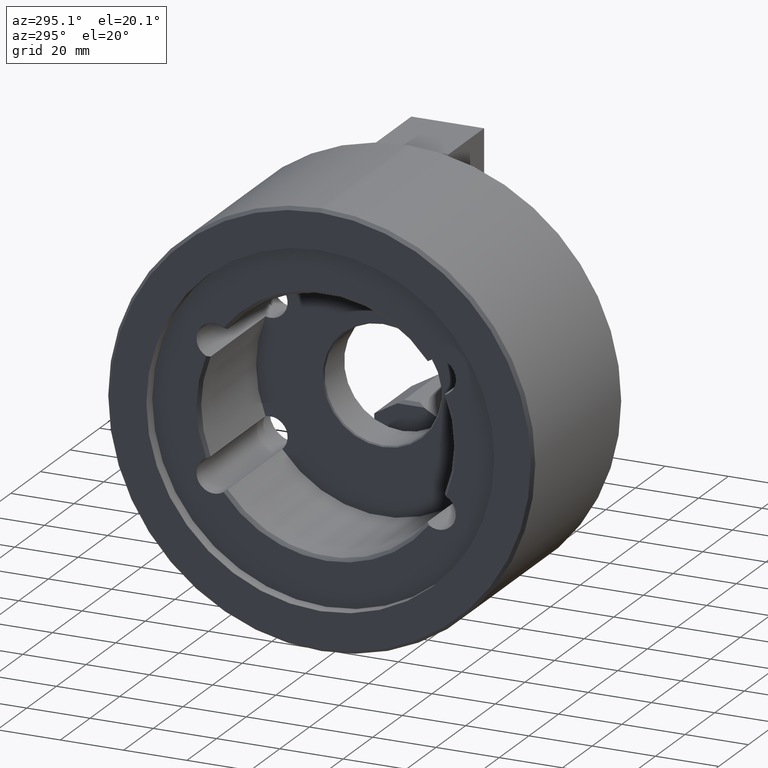
[diagram: clean part render]
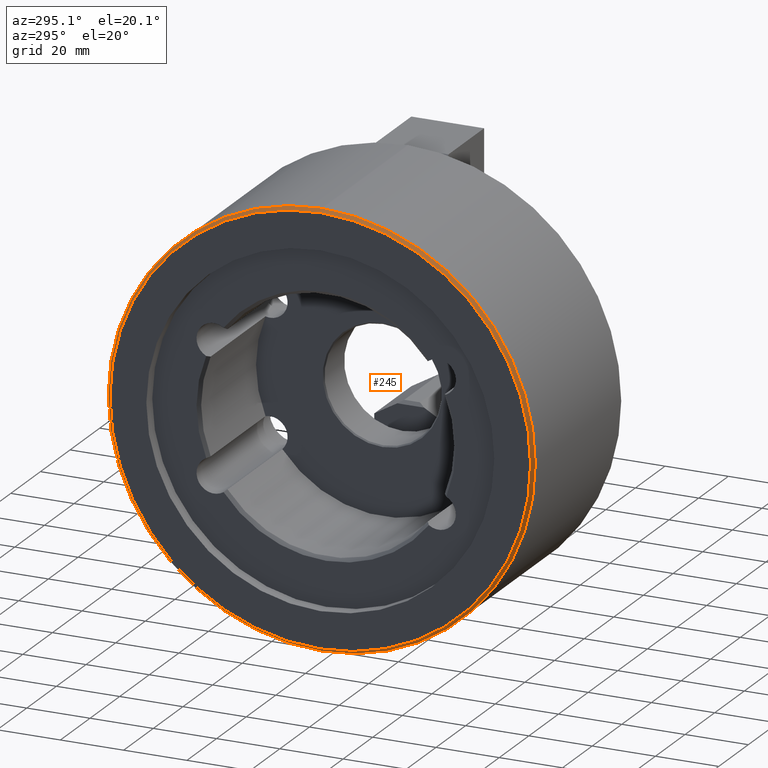
[diagram: same view with one face highlighted and labeled with its STEP entity id]
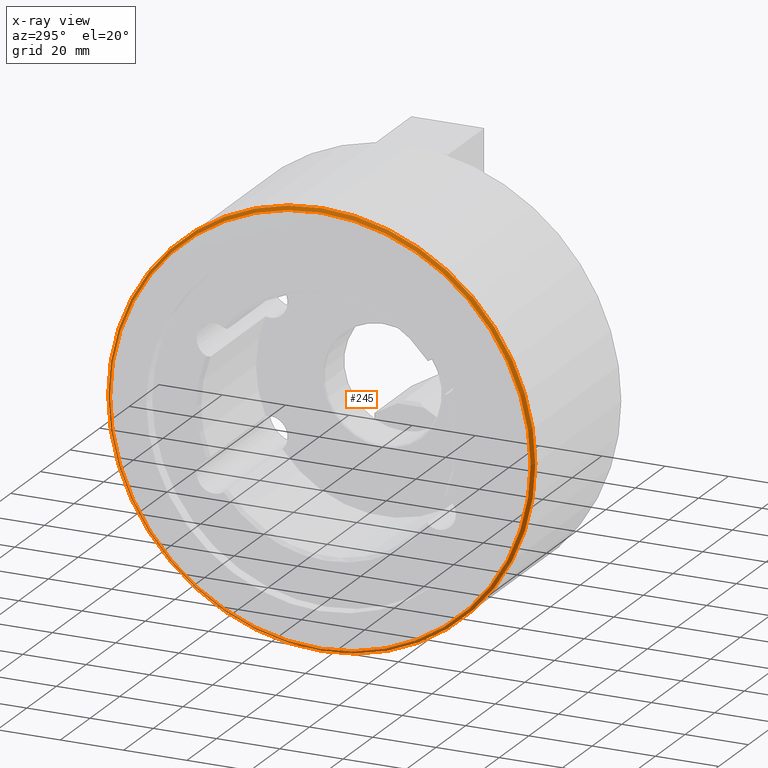
[diagram: x-ray of the same camera — body ghosted, the highlighted face saturated]
A machine part, auxiliary view. The second image highlights one B-rep face of the part: STEP entity #245.
The next image is the same camera in x-ray: the body ghosted, the highlighted face saturated — about 0% of this face is hidden behind the body in this view.
In plain terms, the highlighted conical surface has half-angle 45.042 deg.
Its self-contained STEP definition (entity closure, byte-faithful):
#245 = ADVANCED_FACE( '', ( #670, #671 ), #672, .T. );
#670 = FACE_OUTER_BOUND( '', #1345, .T. );
#671 = FACE_BOUND( '', #1346, .T. );
#672 = CONICAL_SURFACE( '', #1347, 66.5000000000000, 0.786125538495994 );
#1345 = EDGE_LOOP( '', ( #2032 ) );
#1346 = EDGE_LOOP( '', ( #2033 ) );
#1347 = AXIS2_PLACEMENT_3D( '', #2034, #2035, #2036 );
#2032 = ORIENTED_EDGE( '', *, *, #4010, .T. );
#2033 = ORIENTED_EDGE( '', *, *, #4011, .F. );
#2034 = CARTESIAN_POINT( '', ( -29.9985463069267, 0.000000000000000, -1.15549116199418E-030 ) );
#2035 = DIRECTION( '', ( 1.00000000000000, -0.000000000000000, 1.28379282215539E-032 ) );
#2036 = DIRECTION( '', ( 1.28379282215539E-032, 0.000000000000000, -1.00000000000000 ) );
#4010 = EDGE_CURVE( '', #4655, #4655, #4656, .T. );
#4011 = EDGE_CURVE( '', #4657, #4657, #4658, .T. );
#4655 = VERTEX_POINT( '', #5588 );
#4656 = CIRCLE( '', #5589, 67.5000000000000 );
#4657 = VERTEX_POINT( '', #5590 );
#4658 = CIRCLE( '', #5591, 66.5000000000000 );
#5588 = CARTESIAN_POINT( '', ( -29.0000000000000, 0.000000000000000, 67.5000000000000 ) );
#5589 = AXIS2_PLACEMENT_3D( '', #7684, #7685, #7686 );
#5590 = CARTESIAN_POINT( '', ( -29.9985463069267, 0.000000000000000, 66.5000000000000 ) );
#5591 = AXIS2_PLACEMENT_3D( '', #7687, #7688, #7689 );
#7684 = CARTESIAN_POINT( '', ( -29.0000000000000, 0.000000000000000, -1.14267189617996E-030 ) );
#7685 = DIRECTION( '', ( -1.00000000000000, 0.000000000000000, -1.28379282215539E-032 ) );
#7686 = DIRECTION( '', ( -1.28379282215539E-032, 0.000000000000000, 1.00000000000000 ) );
#7687 = CARTESIAN_POINT( '', ( -29.9985463069267, 0.000000000000000, -1.15549116199418E-030 ) );
#7688 = DIRECTION( '', ( -1.00000000000000, 0.000000000000000, -1.28379282215539E-032 ) );
#7689 = DIRECTION( '', ( -1.28379282215539E-032, 0.000000000000000, 1.00000000000000 ) );